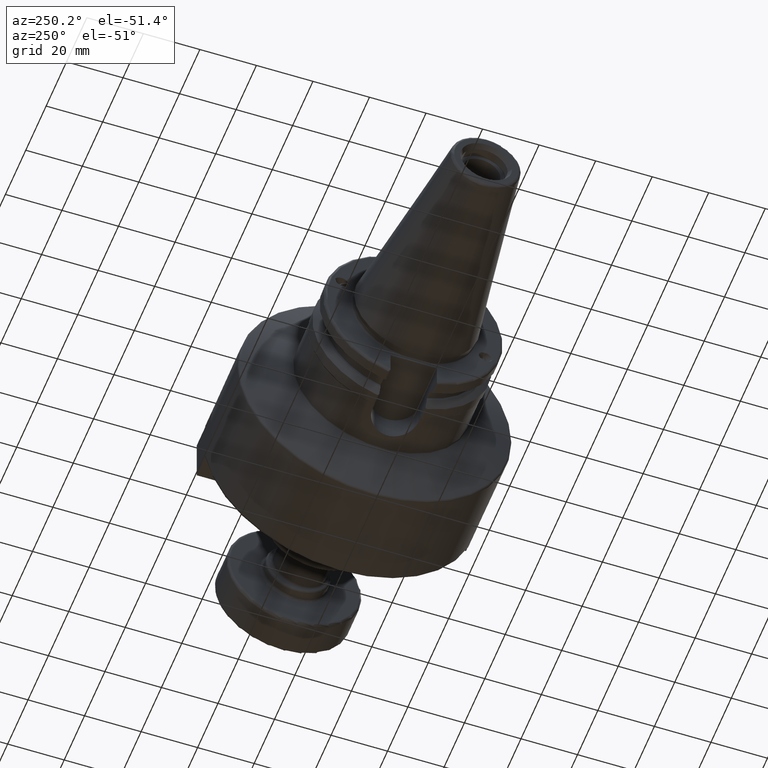
[diagram: clean part render]
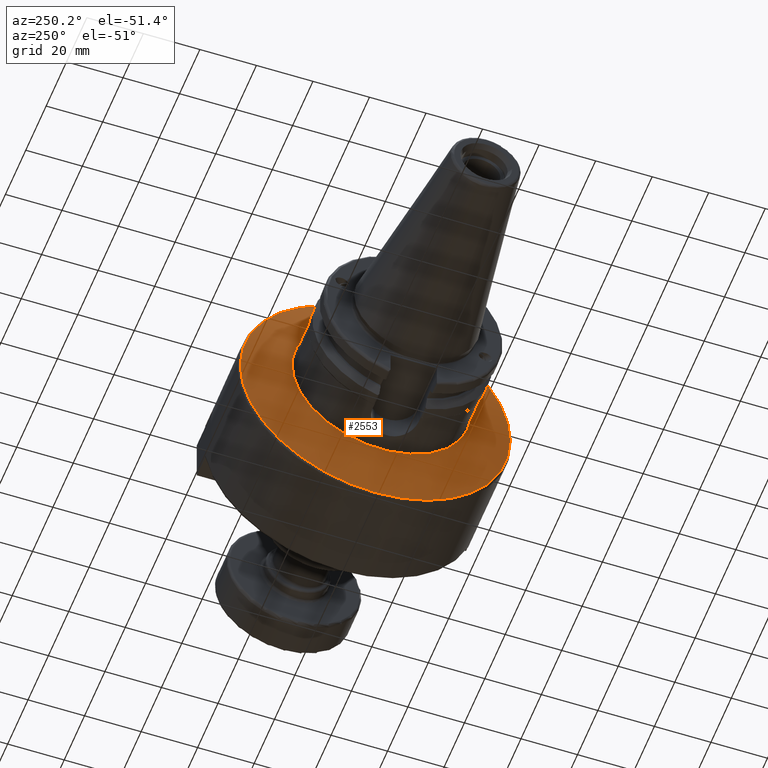
[diagram: same view with one face highlighted and labeled with its STEP entity id]
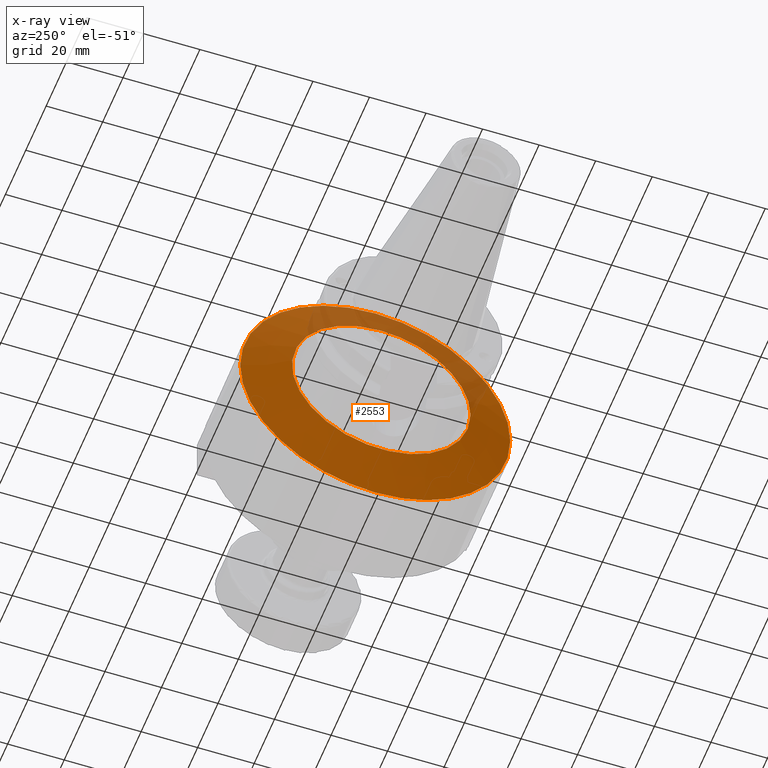
[diagram: x-ray of the same camera — body ghosted, the highlighted face saturated]
A machine part, auxiliary view. The second image highlights one B-rep face of the part: STEP entity #2553.
The next image is the same camera in x-ray: the body ghosted, the highlighted face saturated — about 17% of this face is hidden behind the body in this view.
In plain terms, the highlighted conical surface has half-angle 70 deg.
Its self-contained STEP definition (entity closure, byte-faithful):
#162=CONICAL_SURFACE('',#2838,39.8375,1.22173047639603);
#226=CIRCLE('',#2831,31.5789899283372);
#227=CIRCLE('',#2832,31.5789899283372);
#232=CIRCLE('',#2839,47.7670201433257);
#233=CIRCLE('',#2840,47.7670201433257);
#367=FACE_OUTER_BOUND('',#523,.T.);
#523=EDGE_LOOP('',(#1798,#1799,#1800,#1801,#1802,#1803));
#704=LINE('',#4211,#867);
#867=VECTOR('',#3249,39.8375);
#1081=VERTEX_POINT('',#4147);
#1082=VERTEX_POINT('',#4149);
#1092=VERTEX_POINT('',#4208);
#1093=VERTEX_POINT('',#4209);
#1354=EDGE_CURVE('',#1081,#1082,#226,.T.);
#1355=EDGE_CURVE('',#1082,#1081,#227,.T.);
#1367=EDGE_CURVE('',#1092,#1093,#232,.T.);
#1368=EDGE_CURVE('',#1092,#1082,#704,.T.);
#1369=EDGE_CURVE('',#1093,#1092,#233,.T.);
#1798=ORIENTED_EDGE('',*,*,#1367,.F.);
#1799=ORIENTED_EDGE('',*,*,#1368,.T.);
#1800=ORIENTED_EDGE('',*,*,#1354,.F.);
#1801=ORIENTED_EDGE('',*,*,#1355,.F.);
#1802=ORIENTED_EDGE('',*,*,#1368,.F.);
#1803=ORIENTED_EDGE('',*,*,#1369,.F.);
#2553=ADVANCED_FACE('',(#367),#162,.T.);
#2831=AXIS2_PLACEMENT_3D('',#4150,#3226,#3227);
#2832=AXIS2_PLACEMENT_3D('',#4151,#3228,#3229);
#2838=AXIS2_PLACEMENT_3D('',#4207,#3245,#3246);
#2839=AXIS2_PLACEMENT_3D('',#4210,#3247,#3248);
#2840=AXIS2_PLACEMENT_3D('',#4212,#3250,#3251);
#3226=DIRECTION('center_axis',(-1.,0.,0.));
#3227=DIRECTION('ref_axis',(0.,-1.,3.06161699786838E-17));
#3228=DIRECTION('center_axis',(-1.,0.,0.));
#3229=DIRECTION('ref_axis',(0.,-1.,3.06161699786838E-17));
#3245=DIRECTION('center_axis',(1.,0.,0.));
#3246=DIRECTION('ref_axis',(0.,1.,0.));
#3247=DIRECTION('center_axis',(1.,0.,0.));
#3248=DIRECTION('ref_axis',(0.,-1.,3.06161699786838E-17));
#3249=DIRECTION('',(-0.342020143325668,0.939692620785909,1.15079156022785E-16));
#3250=DIRECTION('center_axis',(1.,0.,0.));
#3251=DIRECTION('ref_axis',(0.,-1.,3.06161699786838E-17));
#4147=CARTESIAN_POINT('',(35.1197425412881,-3.86731089360446E-15,31.5789899283372));
#4149=CARTESIAN_POINT('',(35.1197425412881,-31.5789899283372,-3.86731089360446E-15));
#4150=CARTESIAN_POINT('Origin',(35.1197425412881,0.,-4.83413861700558E-15));
#4151=CARTESIAN_POINT('Origin',(35.1197425412881,0.,-4.83413861700558E-15));
#4207=CARTESIAN_POINT('Origin',(38.125594386761,0.,0.));
#4208=CARTESIAN_POINT('',(41.0117036909458,-47.7670201433257,-5.8497728323331E-15));
#4209=CARTESIAN_POINT('',(41.0117036909458,-5.84977283233309E-15,47.7670201433257));
#4210=CARTESIAN_POINT('Origin',(41.0117036909458,0.,-7.31221604041637E-15));
#4211=CARTESIAN_POINT('',(38.125594386761,-39.8375,-4.87868668610327E-15));
#4212=CARTESIAN_POINT('Origin',(41.0117036909458,0.,-7.31221604041637E-15));